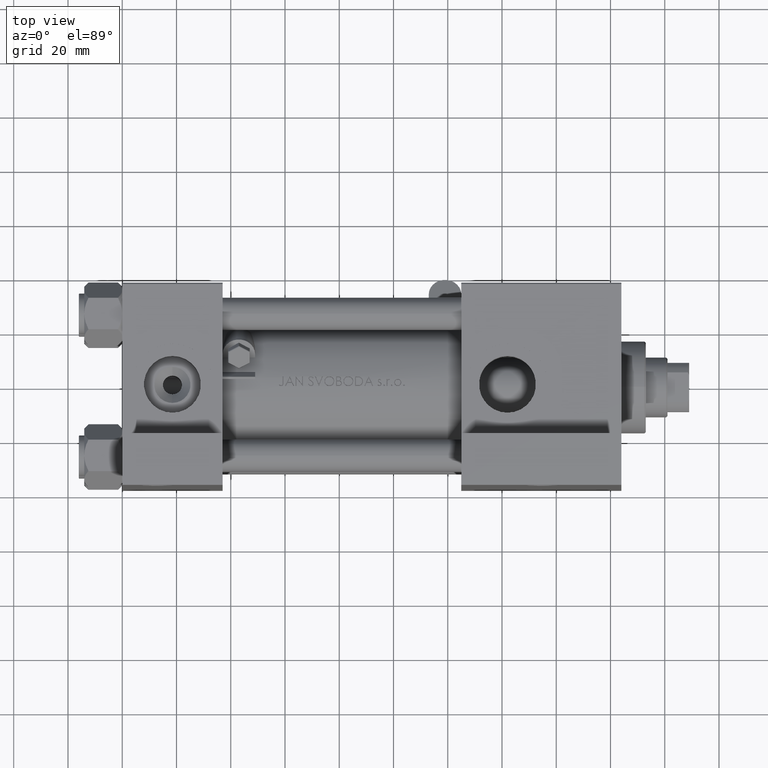
[diagram: clean part render]
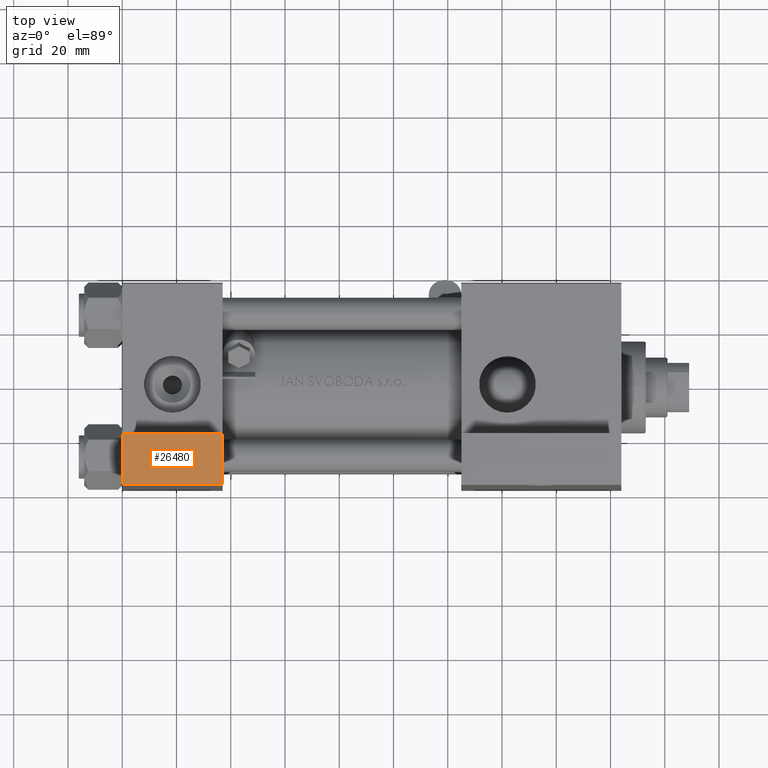
[diagram: same view with one face highlighted and labeled with its STEP entity id]
A machine part, top view. The second image highlights one B-rep face of the part: STEP entity #26480.
In plain terms, the highlighted planar face has unit normal (0, 0, 1).
Its self-contained STEP definition (entity closure, byte-faithful):
#968 = DIRECTION ( 'NONE',  ( 0.000000000000000000, -1.734723475976806848E-16, -1.000000000000000000 ) ) ;
#1311 = CARTESIAN_POINT ( 'NONE',  ( 3.977209754999747208E-16, -63.50000000000000000, -18.50000000000000355 ) ) ;
#3497 = DIRECTION ( 'NONE',  ( 1.000000000000000000, 0.000000000000000000, 0.000000000000000000 ) ) ;
#3604 = DIRECTION ( 'NONE',  ( 0.000000000000000000, -1.000000000000000000, 1.734723475976806848E-16 ) ) ;
#3960 = VECTOR ( 'NONE', #17852, 1000.000000000000000 ) ;
#4790 = EDGE_CURVE ( 'NONE', #27671, #20625, #33036, .T. ) ;
#6811 = PLANE ( 'NONE',  #17790 ) ;
#11479 = CARTESIAN_POINT ( 'NONE',  ( 37.00000000000000000, -63.50000000000000000, -18.50000000000000355 ) ) ;
#11495 = VECTOR ( 'NONE', #25903, 1000.000000000000000 ) ;
#13682 = CARTESIAN_POINT ( 'NONE',  ( 3.977209754999747208E-16, -63.50000000000000000, -37.49999999999999289 ) ) ;
#14158 = CARTESIAN_POINT ( 'NONE',  ( 3.977209754999747208E-16, -63.50000000000000000, -37.49999999999999289 ) ) ;
#14207 = FACE_OUTER_BOUND ( 'NONE', #22854, .T. ) ;
#16339 = EDGE_CURVE ( 'NONE', #20625, #42473, #36035, .T. ) ;
#17790 = AXIS2_PLACEMENT_3D ( 'NONE', #33597, #3604, #44411 ) ;
#17852 = DIRECTION ( 'NONE',  ( -1.000000000000000000, -0.000000000000000000, -0.000000000000000000 ) ) ;
#18293 = CARTESIAN_POINT ( 'NONE',  ( 37.00000000000000000, -63.49999999999998579, 26.72167621838007889 ) ) ;
#20625 = VERTEX_POINT ( 'NONE', #37745 ) ;
#22198 = ORIENTED_EDGE ( 'NONE', *, *, #4790, .F. ) ;
#22675 = CARTESIAN_POINT ( 'NONE',  ( 3.977209754999747208E-16, -63.50000000000000000, -18.50000000000000355 ) ) ;
#22854 = EDGE_LOOP ( 'NONE', ( #22869, #44881, #30679, #22198 ) ) ;
#22869 = ORIENTED_EDGE ( 'NONE', *, *, #46089, .F. ) ;
#25903 = DIRECTION ( 'NONE',  ( 0.000000000000000000, -1.734723475976806848E-16, -1.000000000000000000 ) ) ;
#26480 = ADVANCED_FACE ( 'NONE', ( #14207 ), #6811, .T. ) ;
#27671 = VERTEX_POINT ( 'NONE', #11479 ) ;
#27718 = VERTEX_POINT ( 'NONE', #1311 ) ;
#30679 = ORIENTED_EDGE ( 'NONE', *, *, #16339, .F. ) ;
#30957 = VECTOR ( 'NONE', #968, 1000.000000000000000 ) ;
#31205 = LINE ( 'NONE', #34640, #30957 ) ;
#33036 = LINE ( 'NONE', #18293, #11495 ) ;
#33597 = CARTESIAN_POINT ( 'NONE',  ( 3.977209754999747208E-16, -63.49999999999998579, 26.72167621838007889 ) ) ;
#34640 = CARTESIAN_POINT ( 'NONE',  ( 3.977209754999747208E-16, -63.49999999999998579, 26.72167621838007889 ) ) ;
#35652 = VECTOR ( 'NONE', #3497, 1000.000000000000000 ) ;
#36035 = LINE ( 'NONE', #13682, #3960 ) ;
#37745 = CARTESIAN_POINT ( 'NONE',  ( 37.00000000000000000, -63.50000000000000000, -37.49999999999999289 ) ) ;
#40872 = LINE ( 'NONE', #22675, #35652 ) ;
#42473 = VERTEX_POINT ( 'NONE', #14158 ) ;
#44411 = DIRECTION ( 'NONE',  ( 0.000000000000000000, -1.734723475976806848E-16, -1.000000000000000000 ) ) ;
#44881 = ORIENTED_EDGE ( 'NONE', *, *, #48078, .T. ) ;
#46089 = EDGE_CURVE ( 'NONE', #27718, #27671, #40872, .T. ) ;
#48078 = EDGE_CURVE ( 'NONE', #27718, #42473, #31205, .T. ) ;